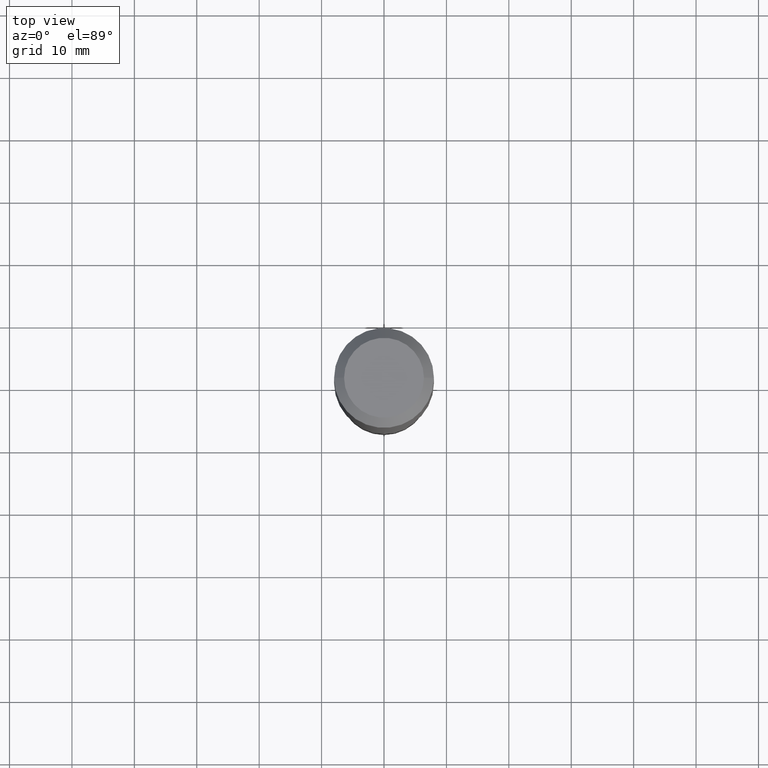
[diagram: clean part render]
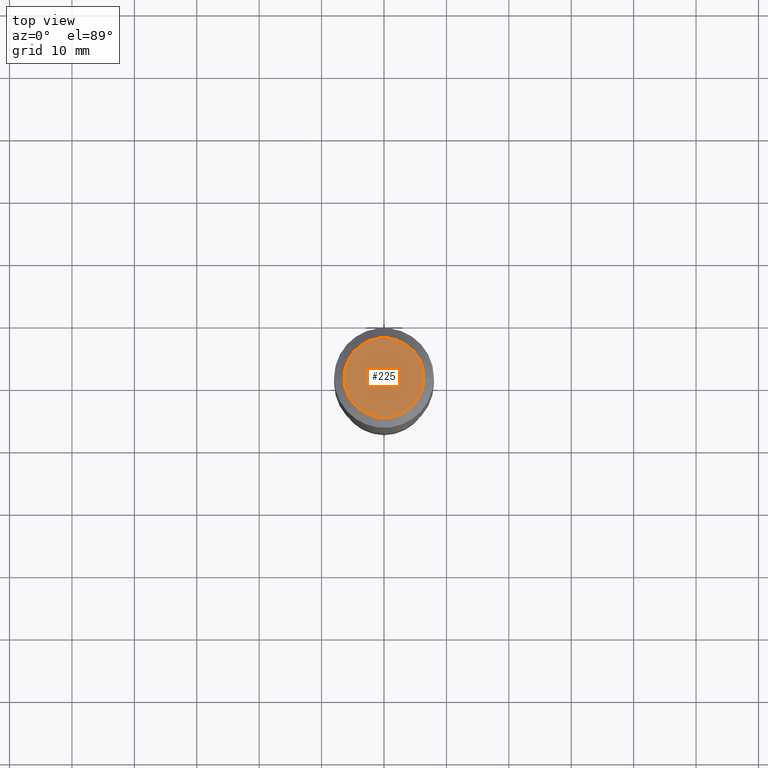
[diagram: same view with one face highlighted and labeled with its STEP entity id]
A machine part, top view. The second image highlights one B-rep face of the part: STEP entity #225.
In plain terms, the highlighted planar face has unit normal (0, -0, -1).
Its self-contained STEP definition (entity closure, byte-faithful):
#15 = DIRECTION ( 'NONE',  ( 1.000000000000000000, -6.982962677686266711E-15, 4.876115136096691995E-29 ) ) ;
#22 = CARTESIAN_POINT ( 'NONE',  ( -0.2519600000000000173, 1.869391481036695286E-15, 3.855188123703182704E-18 ) ) ;
#37 = CARTESIAN_POINT ( 'NONE',  ( -9.427742298522569579E-47, 1.346031739168368629E-32, 3.855188123715871501E-18 ) ) ;
#52 = FACE_OUTER_BOUND ( 'NONE', #417, .T. ) ;
#90 = AXIS2_PLACEMENT_3D ( 'NONE', #37, #194, #350 ) ;
#101 = ORIENTED_EDGE ( 'NONE', *, *, #347, .T. ) ;
#103 = CARTESIAN_POINT ( 'NONE',  ( 0.2519600000000000173, -2.054606664725195058E-15, 3.855188123729206640E-18 ) ) ;
#194 = DIRECTION ( 'NONE',  ( -2.445468806185136597E-29, 3.491481338843145583E-15, 1.000000000000000000 ) ) ;
#221 = DIRECTION ( 'NONE',  ( 2.438088387897960049E-29, -3.491481338843145188E-15, -1.000000000000000000 ) ) ;
#225 = ADVANCED_FACE ( 'NONE', ( #52 ), #399, .F. ) ;
#270 = VERTEX_POINT ( 'NONE', #103 ) ;
#280 = VERTEX_POINT ( 'NONE', #22 ) ;
#300 = CARTESIAN_POINT ( 'NONE',  ( -4.713871149261284790E-47, 6.730158695841843144E-33, 1.927594061857935750E-18 ) ) ;
#312 = DIRECTION ( 'NONE',  ( -2.445468806185136597E-29, 3.491481338843145583E-15, 1.000000000000000000 ) ) ;
#347 = EDGE_CURVE ( 'NONE', #270, #280, #480, .T. ) ;
#350 = DIRECTION ( 'NONE',  ( 1.000000000000000000, -6.982962677686266711E-15, 4.876115136096691995E-29 ) ) ;
#365 = ORIENTED_EDGE ( 'NONE', *, *, #420, .T. ) ;
#366 = CARTESIAN_POINT ( 'NONE',  ( -9.427742298522569579E-47, 1.346031739168368629E-32, 3.855188123715871501E-18 ) ) ;
#374 = AXIS2_PLACEMENT_3D ( 'NONE', #366, #312, #15 ) ;
#390 = AXIS2_PLACEMENT_3D ( 'NONE', #300, #221, #455 ) ;
#399 = PLANE ( 'NONE',  #390 ) ;
#417 = EDGE_LOOP ( 'NONE', ( #365, #101 ) ) ;
#420 = EDGE_CURVE ( 'NONE', #280, #270, #438, .T. ) ;
#438 = CIRCLE ( 'NONE', #374, 0.2519600000000000173 ) ;
#455 = DIRECTION ( 'NONE',  ( -1.000000000000000000, 6.982962677686265922E-15, -4.876176775795935793E-29 ) ) ;
#480 = CIRCLE ( 'NONE', #90, 0.2519600000000000173 ) ;